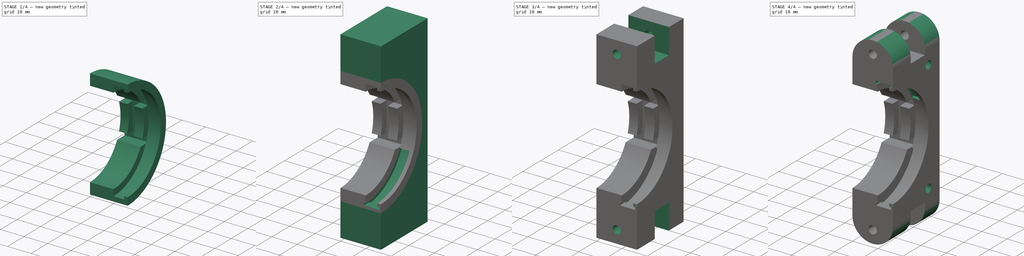
[diagram: build sequence overview — one tinted view per stage of 4, left to right]
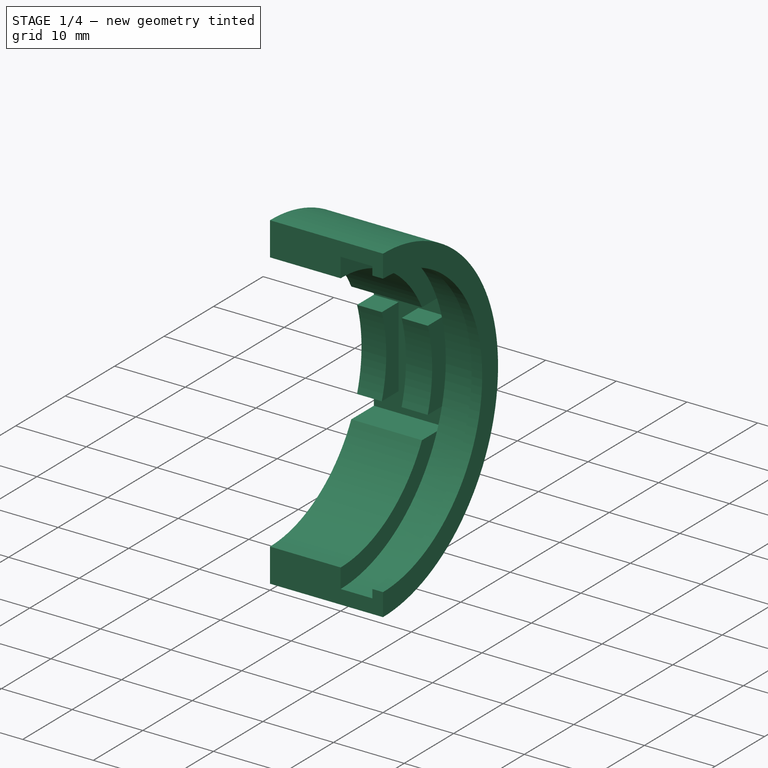
[diagram: stage 1 of 4 — iso view after this stage's code; geometry added in this stage tinted green]
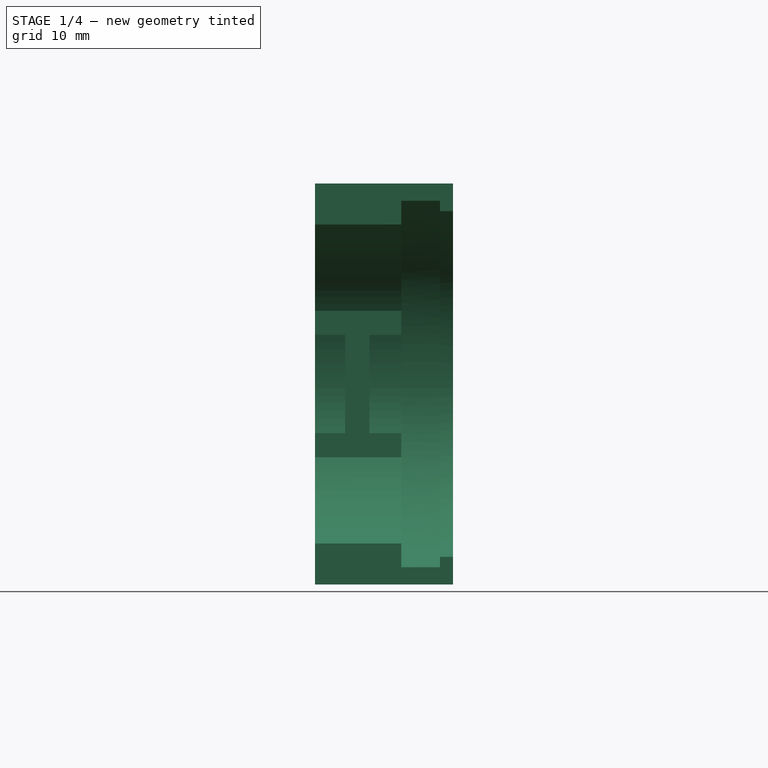
[diagram: stage 1 of 4 — front view after this stage's code; geometry added in this stage tinted green]
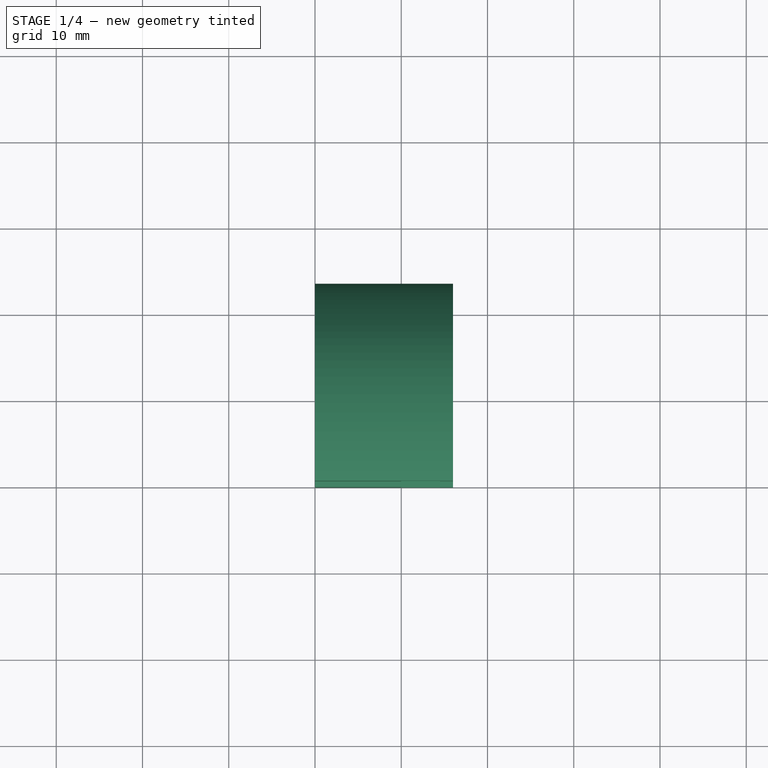
[diagram: stage 1 of 4 — top view after this stage's code; geometry added in this stage tinted green]
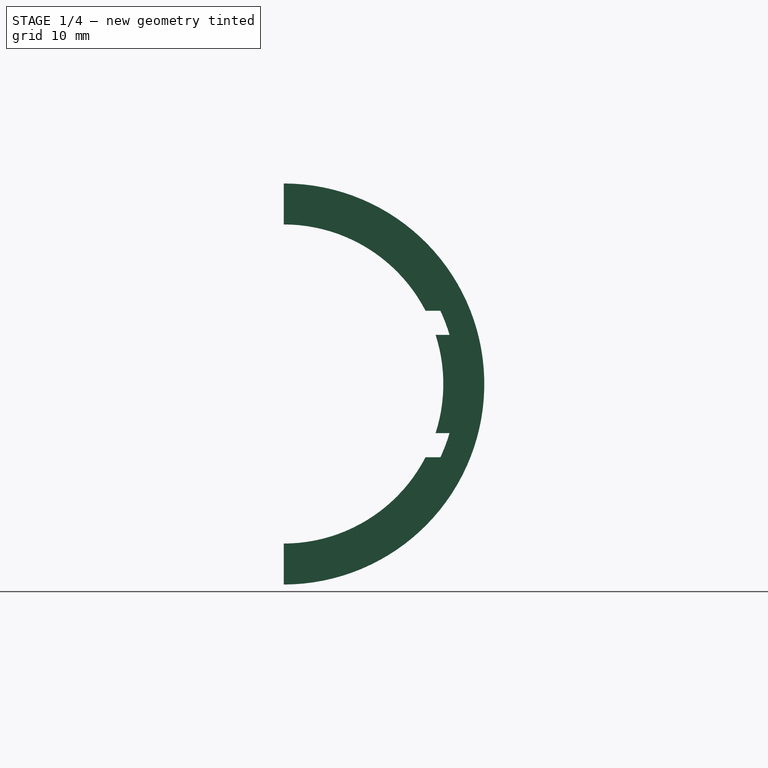
[diagram: stage 1 of 4 — right view after this stage's code; geometry added in this stage tinted green]
FCSTD DOCUMENT  (FreeCAD 0.21R33771 (Git))
Label: fixador-amortecedor-encoder-catraca
License: All rights reserved
LicenseURL: https://en.wikipedia.org/wiki/All_rights_reserved
objects: Sketcher::SketchObject×10, PartDesign::Pocket×6, PartDesign::Groove×2, PartDesign::Revolution×1, PartDesign::Pad×1, PartDesign::Mirrored×1, PartDesign::Fillet×1, PartDesign::Body×1
note: 34 computed .brp shape members not serialized (recipe doc carries the construction recipe); baked Part::Feature solids carry a one-line shape summary decoded from their .brp

FEATURE [Sketcher::SketchObject] Sketch
  FullyConstrained = true
  MapMode = 5
  Support = -> [XY_Plane]
  sketch-geometry (14):
    g0: LineSegment StartX=0 StartY=-18.5 StartZ=0 EndX=10 EndY=-18.5 EndZ=0
    g1: LineSegment StartX=10 StartY=-18.5 StartZ=0 EndX=10 EndY=-23.25 EndZ=0
    g2: LineSegment StartX=10 StartY=-23.25 StartZ=0 EndX=0 EndY=-23.25 EndZ=0
    g3: LineSegment StartX=0 StartY=-23.25 StartZ=0 EndX=0 EndY=-18.5 EndZ=0
    g4: LineSegment StartX=10 StartY=-21.25 StartZ=0 EndX=14.5 EndY=-21.25 EndZ=0
    g5: LineSegment StartX=14.5 StartY=-21.25 StartZ=0 EndX=14.5 EndY=-23.25 EndZ=0
    g6: LineSegment StartX=14.5 StartY=-23.25 StartZ=0 EndX=10 EndY=-23.25 EndZ=0
    g7: LineSegment StartX=10 StartY=-23.25 StartZ=0 EndX=10 EndY=-21.25 EndZ=0
    g8: LineSegment StartX=10 StartY=-18.5 StartZ=0 EndX=10 EndY=-21.25 EndZ=0
    g9: LineSegment StartX=14.5 StartY=-23.25 StartZ=0 EndX=16 EndY=-23.25 EndZ=0
    g10: LineSegment StartX=16 StartY=-23.25 StartZ=0 EndX=16 EndY=-20.05 EndZ=0
    g11: LineSegment StartX=16 StartY=-20.05 StartZ=0 EndX=14.5 EndY=-20.05 EndZ=0
    g12: LineSegment StartX=14.5 StartY=-20.05 StartZ=0 EndX=14.5 EndY=-23.25 EndZ=0
    g13: LineSegment StartX=14.5 StartY=-20.05 StartZ=0 EndX=14.5 EndY=-21.25 EndZ=0
  constraints (38):
    c: Coincident(g0,g1)
    c: Coincident(g1,g2)
    c: Coincident(g2,g3)
    c: Coincident(g3,g0)
    c: Horizontal(g0)
    c: Horizontal(g2)
    c: Vertical(g1)
    c: Vertical(g3)
    c: DistanceY(g0,g-1) = 18.5
    c: DistanceX(g0,g0) = 10
    c: PointOnObject(g0,g-2)
    c: Coincident(g4,g5)
    c: Coincident(g5,g6)
    c: Coincident(g6,g7)
    c: Coincident(g7,g4)
    c: Horizontal(g4)
    c: Horizontal(g6)
    c: Vertical(g5)
    c: Vertical(g7)
    c: DistanceY(g4,g-1) = 21.25
    c: Coincident(g6,g2)
    c: Coincident(g8,g0)
    c: Coincident(g8,g4)
    c: Coincident(g9,g10)
    c: Coincident(g10,g11)
    c: Coincident(g11,g12)
    c: Coincident(g12,g9)
    c: Horizontal(g9)
    c: Horizontal(g11)
    c: Vertical(g10)
    c: Vertical(g12)
    c: Coincident(g9,g6)
    c: DistanceY(g11,g-1) = 20.05
    c: Coincident(g13,g11)
    c: Coincident(g13,g4)
    c: DistanceY(g9,g4) = 2
    c: DistanceX(g11,g11) = 1.5
    c: DistanceX(g2,g9) = 16
FEATURE [PartDesign::Revolution] Revolution
  Angle = 360
  Axis = (1,0,0)
  Base = (0,0,0)
  Profile = -> Sketch
  ReferenceAxis = -> X_Axis
  Reversed = true
FEATURE [Sketcher::SketchObject] Sketch001
  ExternalGeometry = -> [Revolution]
  FullyConstrained = true
  MapMode = 5
  Placement = pos=(16,0,0) rot=(0.57735,0.57735,0.57735;2.0944rad)
  Support = -> [Revolution]
  sketch-geometry (4):
    g0: LineSegment StartX=-23.25 StartY=23.25 StartZ=0 EndX=0 EndY=23.25 EndZ=0
    g1: LineSegment StartX=0 StartY=23.25 StartZ=0 EndX=0 EndY=-23.25 EndZ=0
    g2: LineSegment StartX=0 StartY=-23.25 StartZ=0 EndX=-23.25 EndY=-23.25 EndZ=0
    g3: LineSegment StartX=-23.25 StartY=-23.25 StartZ=0 EndX=-23.25 EndY=23.25 EndZ=0
  constraints (12):
    c: Coincident(g0,g1)
    c: Coincident(g1,g2)
    c: Coincident(g2,g3)
    c: Coincident(g3,g0)
    c: Horizontal(g0)
    c: Horizontal(g2)
    c: Vertical(g1)
    c: Vertical(g3)
    c: PointOnObject(g1,g-2)
    c: PointOnObject(g1,g-3)
    c: PointOnObject(g0,g-3)
    c: Tangent(g3,g-3)
FEATURE [PartDesign::Pocket] Pocket
  BaseFeature = -> Revolution
  Direction = (-1,0,0)
  Length = 5
  Length2 = 5
  Profile = -> Sketch001
  ReferenceAxis = -> Sketch001 [N_Axis]
  Type = 1
FEATURE [Sketcher::SketchObject] Sketch002
  ExternalGeometry = -> [Pocket]
  FullyConstrained = false
  MapMode = 5
  Placement = pos=(0,0,0) rot=(1,0,0;1.5708rad)
  Support = -> [Pocket]
  sketch-geometry (20):
    g0: LineSegment StartX=1.46192 StartY=8.5 StartZ=0 EndX=10 EndY=8.5 EndZ=0
    g1: LineSegment StartX=10 StartY=8.5 StartZ=0 EndX=10 EndY=-8.5 EndZ=0
    g2: LineSegment StartX=10 StartY=-8.5 StartZ=0 EndX=1.46192 EndY=-8.5 EndZ=0
    g3: LineSegment StartX=1.46192 StartY=-8.5 StartZ=0 EndX=1.46192 EndY=8.5 EndZ=0
    g4: LineSegment StartX=0 StartY=8.5 StartZ=0 EndX=10 EndY=8.5 EndZ=0
    g5: LineSegment StartX=10 StartY=8.5 StartZ=0 EndX=10 EndY=5.7 EndZ=0
    g6: LineSegment StartX=10 StartY=5.7 StartZ=0 EndX=0 EndY=5.7 EndZ=0
    g7: LineSegment StartX=0 StartY=5.7 StartZ=0 EndX=0 EndY=8.5 EndZ=0
    g8: LineSegment StartX=10 StartY=-5.7 StartZ=0 EndX=0 EndY=-5.7 EndZ=0
    g9: LineSegment StartX=0 StartY=-5.7 StartZ=0 EndX=0 EndY=-8.5 EndZ=0
    g10: LineSegment StartX=0 StartY=-8.5 StartZ=0 EndX=10 EndY=-8.5 EndZ=0
    g11: LineSegment StartX=10 StartY=-8.5 StartZ=0 EndX=10 EndY=-5.7 EndZ=0
    g12: LineSegment StartX=3.5 StartY=5.7 StartZ=0 EndX=6.3 EndY=5.7 EndZ=0
    g13: LineSegment StartX=6.3 StartY=5.7 StartZ=0 EndX=6.3 EndY=-5.7 EndZ=0
    g14: LineSegment StartX=6.3 StartY=-5.7 StartZ=0 EndX=3.5 EndY=-5.7 EndZ=0
    g15: LineSegment StartX=3.5 StartY=-5.7 StartZ=0 EndX=3.5 EndY=5.7 EndZ=0
    g16: LineSegment StartX=3.5 StartY=5.7 StartZ=0 EndX=0 EndY=5.7 EndZ=0
    g17: LineSegment StartX=6.3 StartY=5.7 StartZ=0 EndX=10 EndY=5.7 EndZ=0
    g18: LineSegment StartX=3.5 StartY=-5.7 StartZ=0 EndX=0 EndY=-5.7 EndZ=0
    g19: LineSegment StartX=6.3 StartY=-5.7 StartZ=0 EndX=10 EndY=-5.7 EndZ=0
  constraints (54):
    c: Coincident(g0,g1)
    c: Coincident(g1,g2)
    c: Coincident(g2,g3)
    c: Coincident(g3,g0)
    c: Horizontal(g0)
    c: Horizontal(g2)
    c: Vertical(g1)
    c: Symmetric(g2,g0,g-1)
    c: Coincident(g4,g5)
    c: Coincident(g5,g6)
    c: Coincident(g6,g7)
    c: Coincident(g7,g4)
    c: Horizontal(g4)
    c: Horizontal(g6)
    c: Vertical(g5)
    c: Vertical(g7)
    c: PointOnObject(g5,g1)
    c: Coincident(g8,g9)
    c: Coincident(g9,g10)
    c: Coincident(g10,g11)
    c: Coincident(g11,g8)
    c: Horizontal(g8)
    c: Horizontal(g10)
    c: Vertical(g9)
    c: Vertical(g11)
    c: PointOnObject(g8,g1)
    c: PointOnObject(g2,g10)
    c: PointOnObject(g9,g-2)
    c: Symmetric(g6,g8,g-1)
    c: PointOnObject(g0,g4)
    c: Coincident(g12,g13)
    c: Coincident(g13,g14)
    c: Coincident(g14,g15)
    c: Coincident(g15,g12)
    c: Horizontal(g12)
    c: Horizontal(g14)
    c: Vertical(g13)
    c: Vertical(g15)
    c: PointOnObject(g12,g6)
    c: PointOnObject(g13,g8)
    c: Coincident(g16,g7)
    c: Coincident(g16,g15)
    c: Coincident(g17,g13)
    c: Coincident(g17,g5)
    c: Coincident(g18,g9)
    c: Coincident(g18,g15)
    c: Coincident(g19,g13)
    c: Coincident(g19,g11)
    c: DistanceY(g7,g7) = 2.8
    c: DistanceX(g15,g13) = 2.8
    c: DistanceY(g9,g4) = 17
    c: DistanceX(g18,g18) = 3.5
    c: PointOnObject(g5,g-3)
    c: DistanceX(g-3,g-4) = 4.5
FEATURE [PartDesign::Pocket] Pocket001
  BaseFeature = -> Pocket
  Direction = (0,1,-2e-16)
  Length = 21
  Length2 = 5
  Profile = -> Sketch002
  ReferenceAxis = -> Sketch002 [N_Axis]
  Type = 0
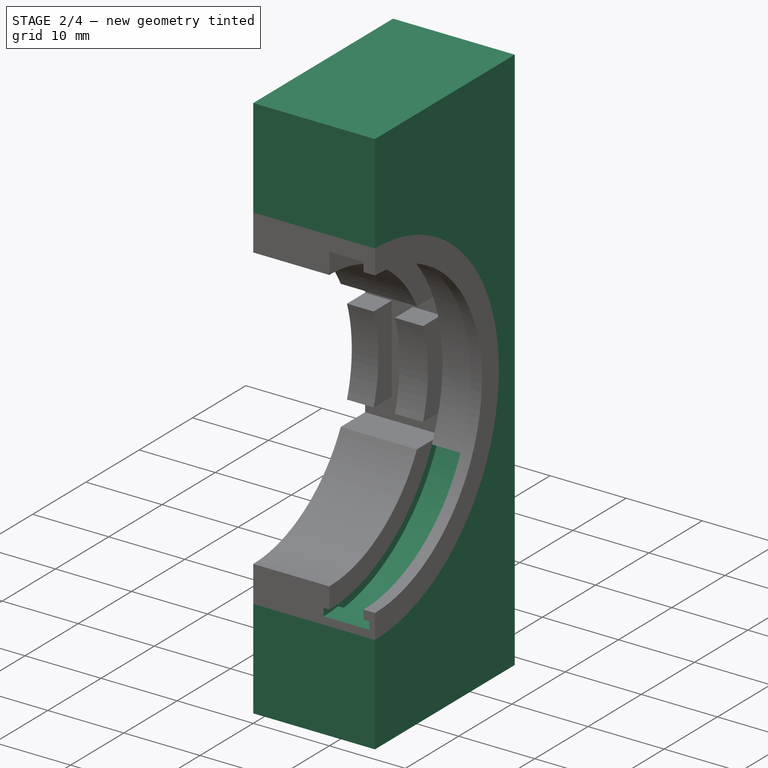
[diagram: stage 2 of 4 — iso view after this stage's code; geometry added in this stage tinted green]
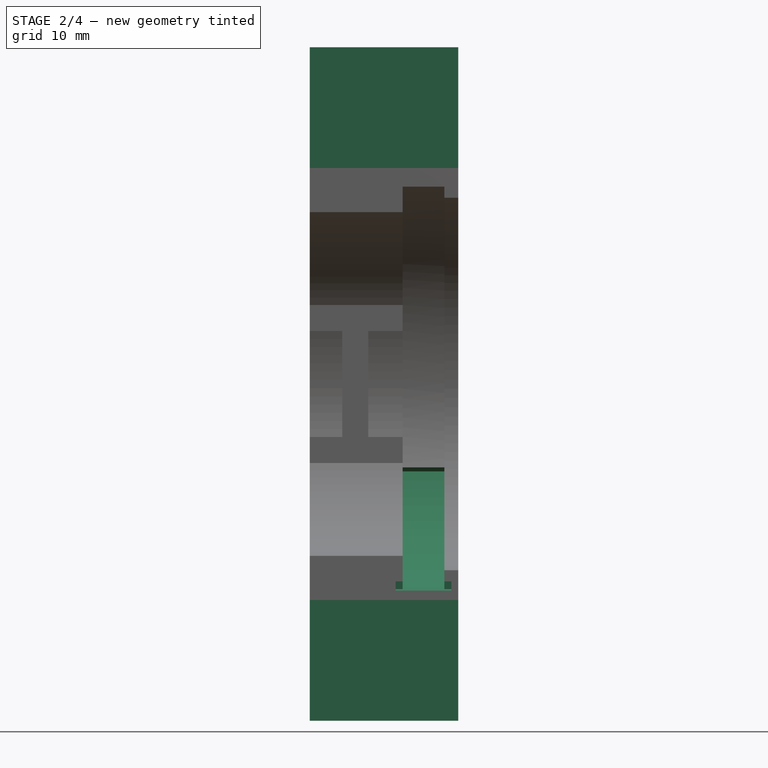
[diagram: stage 2 of 4 — front view after this stage's code; geometry added in this stage tinted green]
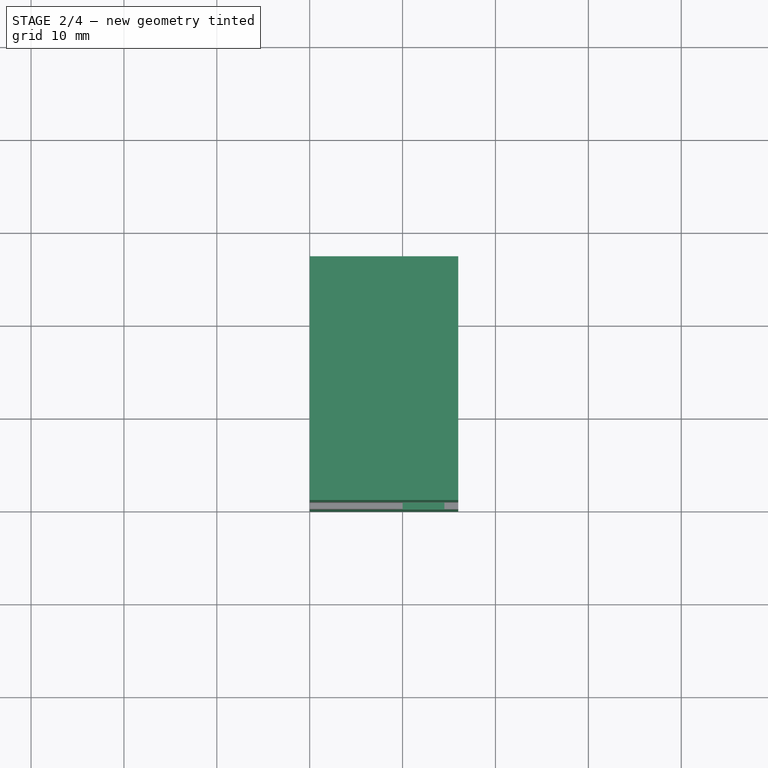
[diagram: stage 2 of 4 — top view after this stage's code; geometry added in this stage tinted green]
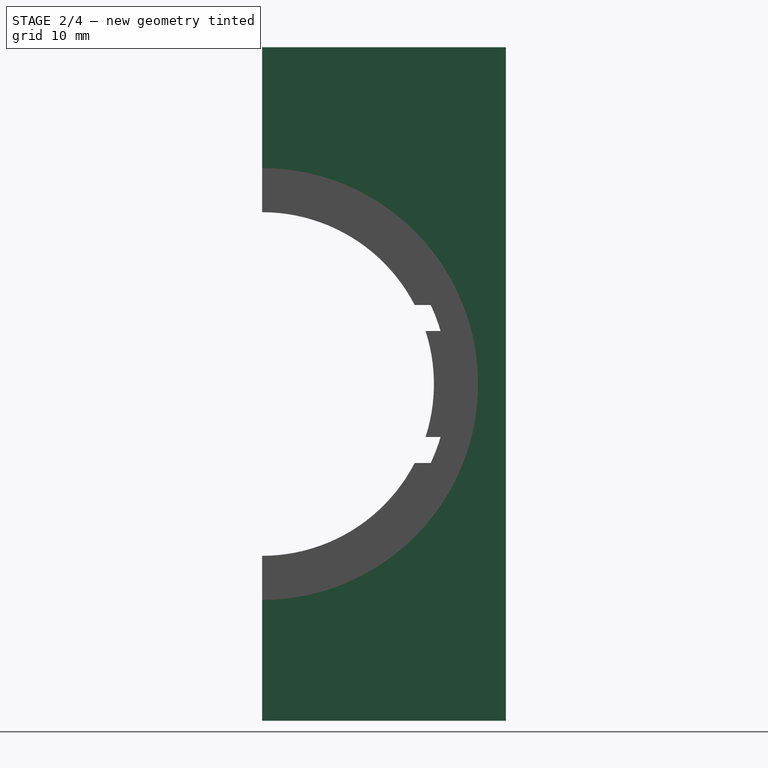
[diagram: stage 2 of 4 — right view after this stage's code; geometry added in this stage tinted green]
FEATURE [Sketcher::SketchObject] Sketch003
  ExternalGeometry = -> [Pocket001]
  FullyConstrained = true
  MapMode = 5
  Placement = pos=(0,0,0) rot=(1,0,0;1.5708rad)
  Support = -> [Pocket001]
  sketch-geometry (4):
    g0: LineSegment StartX=10 StartY=-21.25 StartZ=0 EndX=14.5 EndY=-21.25 EndZ=0
    g1: LineSegment StartX=14.5 StartY=-21.25 StartZ=0 EndX=14.5 EndY=-22.25 EndZ=0
    g2: LineSegment StartX=14.5 StartY=-22.25 StartZ=0 EndX=10 EndY=-22.25 EndZ=0
    g3: LineSegment StartX=10 StartY=-22.25 StartZ=0 EndX=10 EndY=-21.25 EndZ=0
  constraints (10):
    c: Coincident(g0,g1)
    c: Coincident(g1,g2)
    c: Coincident(g2,g3)
    c: Coincident(g3,g0)
    c: Horizontal(g2)
    c: Vertical(g1)
    c: Vertical(g3)
    c: Coincident(g0,g-3)
    c: Coincident(g0,g-3)
    c: DistanceY(g3,g3) = 1
FEATURE [PartDesign::Groove] Groove
  Angle = 65
  Axis = (1,0,0)
  Base = (0,0,0)
  BaseFeature = -> Pocket001
  Profile = -> Sketch003
  ReferenceAxis = -> X_Axis
FEATURE [Sketcher::SketchObject] Sketch004
  ExternalGeometry = -> [Groove]
  FullyConstrained = true
  MapMode = 5
  Placement = pos=(0,0,0) rot=(1,0,0;1.5708rad)
  Support = -> [Groove]
  sketch-geometry (5):
    g0: LineSegment StartX=15.25 StartY=-22.25 StartZ=0 EndX=9.25 EndY=-22.25 EndZ=0
    g1: LineSegment StartX=9.25 StartY=-22.25 StartZ=0 EndX=9.25 EndY=-21.25 EndZ=0
    g2: LineSegment StartX=9.25 StartY=-21.25 StartZ=0 EndX=15.25 EndY=-21.25 EndZ=0
    g3: LineSegment StartX=15.25 StartY=-21.25 StartZ=0 EndX=15.25 EndY=-22.25 EndZ=0
    g4: LineSegment StartX=12.25 StartY=-21.25 StartZ=0 EndX=12.25 EndY=-22.25 EndZ=0
  constraints (14):
    c: Coincident(g0,g1)
    c: Coincident(g1,g2)
    c: Coincident(g2,g3)
    c: Coincident(g3,g0)
    c: Horizontal(g0)
    c: Vertical(g1)
    c: Vertical(g3)
    c: PointOnObject(g-3,g0)
    c: Symmetric(g2,g1,g4)
    c: Symmetric(g-3,g-3,g4)
    c: PointOnObject(g-4,g2)
    c: DistanceX(g2,g2) = 6
    c: PointOnObject(g4,g0)
    c: PointOnObject(g4,g2)
FEATURE [PartDesign::Groove] Groove001
  Angle = 7
  Axis = (1,0,0)
  Base = (0,0,0)
  BaseFeature = -> Groove
  Profile = -> Sketch004
  ReferenceAxis = -> X_Axis
FEATURE [Sketcher::SketchObject] Sketch005
  ExternalGeometry = -> [Groove001]
  FullyConstrained = true
  MapMode = 5
  Placement = pos=(0,0,0) rot=(0.57735,-0.57735,-0.57735;2.0944rad)
  Support = -> [Groove001]
  sketch-geometry (7):
    g0: ArcOfCircle CenterX=0 CenterY=-1.3e-15 CenterZ=0 NormalX=0 NormalY=0 NormalZ=1 AngleXU=0 Radius=23.25 StartAngle=1.5708 EndAngle=4.71239
    g1: LineSegment StartX=-26.25 StartY=36.25 StartZ=0 EndX=0 EndY=36.25 EndZ=0
    g2: LineSegment StartX=0 StartY=36.25 StartZ=0 EndX=0 EndY=23.25 EndZ=0
    g3: LineSegment StartX=-26.25 StartY=-36.25 StartZ=0 EndX=-26.25 EndY=36.25 EndZ=0
    g4: LineSegment StartX=-23.25 StartY=36.25 StartZ=0 EndX=-23.25 EndY=-36.25 EndZ=0
    g5: LineSegment StartX=-26.25 StartY=-36.25 StartZ=0 EndX=-2.522e-13 EndY=-36.25 EndZ=0
    g6: LineSegment StartX=-2.521e-13 StartY=-36.25 StartZ=0 EndX=-2.521e-13 EndY=-23.25 EndZ=0
  constraints (21):
    c: PointOnObject(g0,g-2)
    c: Coincident(g0,g-3)
    c: Coincident(g0,g-3)
    c: Coincident(g1,g2)
    c: Coincident(g3,g1)
    c: Horizontal(g1)
    c: Vertical(g2)
    c: PointOnObject(g1,g-2)
    c: PointOnObject(g2,g0)
    c: Symmetric(g1,g3,g-1)
    c: PointOnObject(g4,g1)
    c: Vertical(g4)
    c: Tangent(g4,g0)
    c: DistanceY(g2,g2) = 13
    c: DistanceX(g1,g4) = 3
    c: Coincident(g5,g3)
    c: Horizontal(g5)
    c: Coincident(g6,g5)
    c: Vertical(g6)
    c: Coincident(g6,g0)
    c: PointOnObject(g4,g5)
FEATURE [PartDesign::Pad] Pad
  BaseFeature = -> Groove001
  Direction = (-1,0,0)
  Length = 10
  Length2 = 10
  Profile = -> Sketch005
  ReferenceAxis = -> Sketch005 [N_Axis]
  Type = 3
  UpToFace = -> Groove001 [Face6]
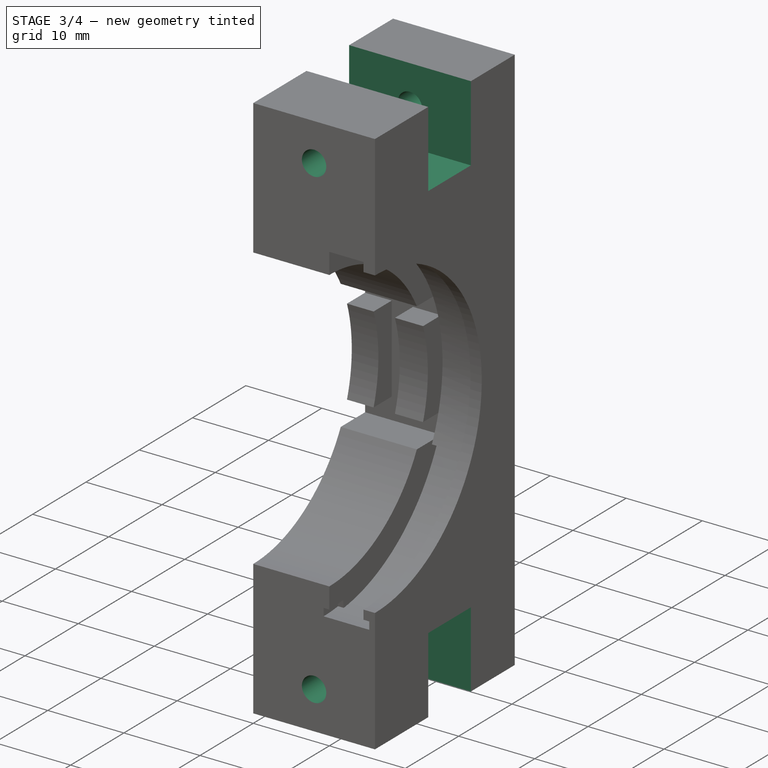
[diagram: stage 3 of 4 — iso view after this stage's code; geometry added in this stage tinted green]
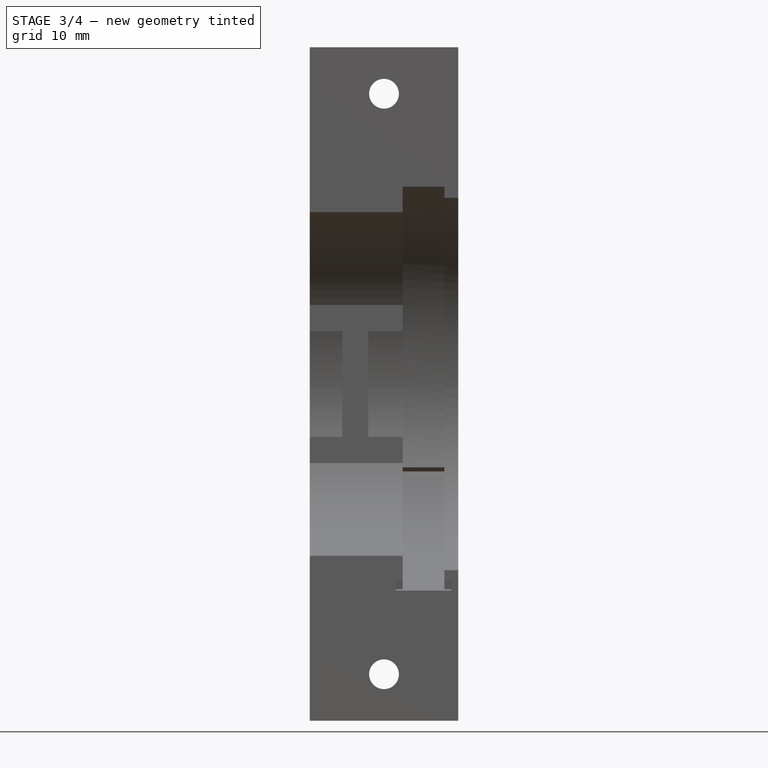
[diagram: stage 3 of 4 — front view after this stage's code; geometry added in this stage tinted green]
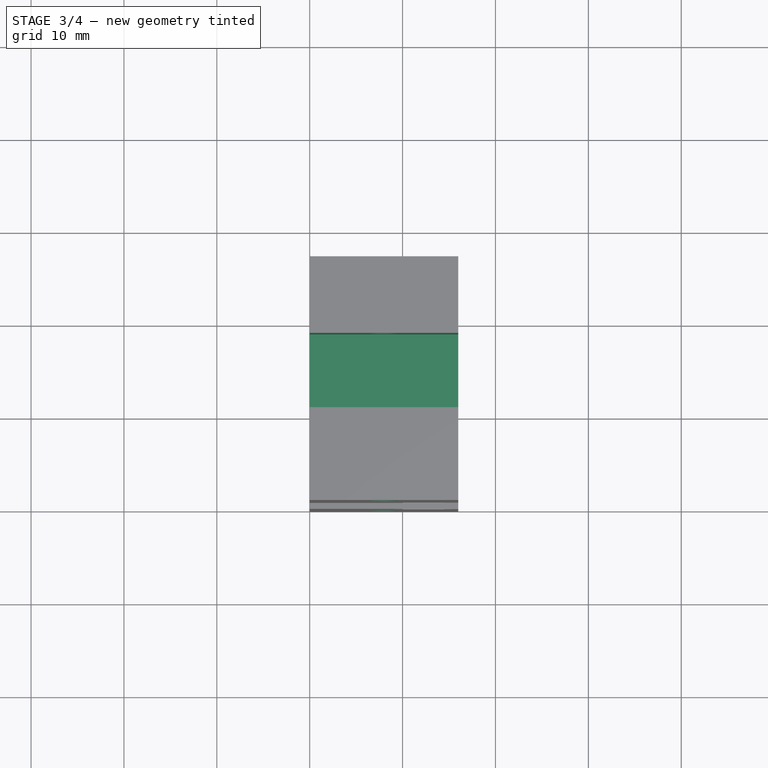
[diagram: stage 3 of 4 — top view after this stage's code; geometry added in this stage tinted green]
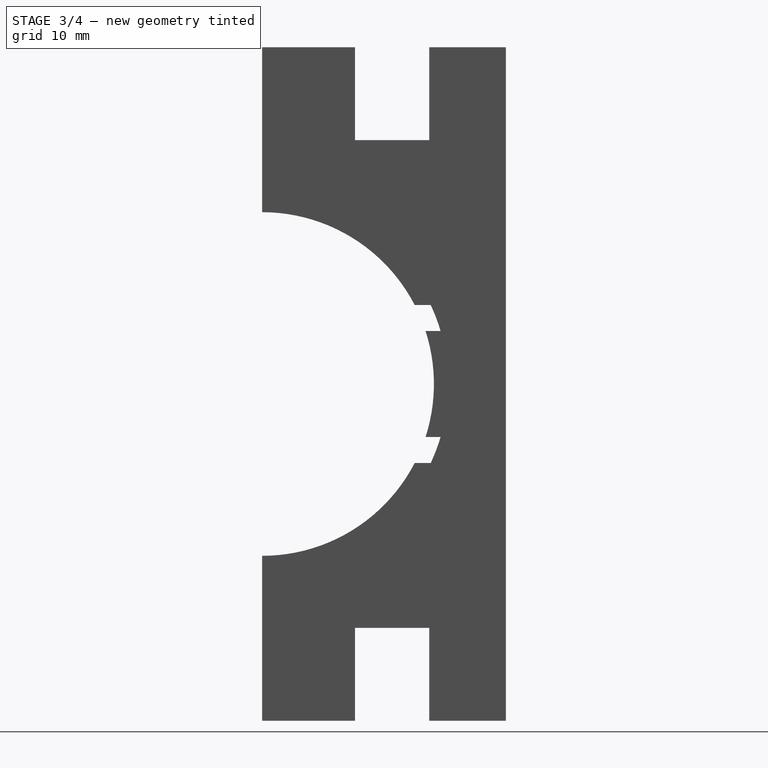
[diagram: stage 3 of 4 — right view after this stage's code; geometry added in this stage tinted green]
FEATURE [Sketcher::SketchObject] Sketch006
  ExternalGeometry = -> [Pad]
  FullyConstrained = true
  MapMode = 5
  Placement = pos=(16,0,0) rot=(0.57735,0.57735,0.57735;2.0944rad)
  Support = -> [Pad]
  sketch-geometry (16):
    g0: LineSegment StartX=-10 StartY=36.25 StartZ=0 EndX=10 EndY=36.25 EndZ=0
    g1: LineSegment StartX=10 StartY=36.25 StartZ=0 EndX=10 EndY=26.25 EndZ=0
    g2: LineSegment StartX=10 StartY=26.25 StartZ=0 EndX=-10 EndY=26.25 EndZ=0
    g3: LineSegment StartX=-10 StartY=26.25 StartZ=0 EndX=-10 EndY=36.25 EndZ=0
    g4: LineSegment StartX=-10 StartY=36.25 StartZ=0 EndX=-18 EndY=36.25 EndZ=0
    g5: LineSegment StartX=-18 StartY=36.25 StartZ=0 EndX=-18 EndY=26.25 EndZ=0
    g6: LineSegment StartX=-18 StartY=26.25 StartZ=0 EndX=-10 EndY=26.25 EndZ=0
    g7: LineSegment StartX=-10 StartY=26.25 StartZ=0 EndX=-10 EndY=36.25 EndZ=0
    g8: LineSegment StartX=10 StartY=36.25 StartZ=0 EndX=18 EndY=36.25 EndZ=0
    g9: LineSegment StartX=18 StartY=36.25 StartZ=0 EndX=18 EndY=26.25 EndZ=0
    g10: LineSegment StartX=18 StartY=26.25 StartZ=0 EndX=10 EndY=26.25 EndZ=0
    g11: LineSegment StartX=10 StartY=26.25 StartZ=0 EndX=10 EndY=36.25 EndZ=0
    g12: LineSegment StartX=10 StartY=-36.25 StartZ=0 EndX=18 EndY=-36.25 EndZ=0
    g13: LineSegment StartX=18 StartY=-36.25 StartZ=0 EndX=18 EndY=-26.25 EndZ=0
    g14: LineSegment StartX=18 StartY=-26.25 StartZ=0 EndX=10 EndY=-26.25 EndZ=0
    g15: LineSegment StartX=10 StartY=-26.25 StartZ=0 EndX=10 EndY=-36.25 EndZ=0
  constraints (44):
    c: Coincident(g0,g1)
    c: Coincident(g1,g2)
    c: Coincident(g2,g3)
    c: Coincident(g3,g0)
    c: Horizontal(g2)
    c: Vertical(g1)
    c: Vertical(g3)
    c: Coincident(g4,g5)
    c: Coincident(g5,g6)
    c: Coincident(g6,g7)
    c: Coincident(g7,g4)
    c: Horizontal(g4)
    c: Horizontal(g6)
    c: Vertical(g5)
    c: Vertical(g7)
    c: Coincident(g4,g0)
    c: Coincident(g8,g9)
    c: Coincident(g9,g10)
    c: Coincident(g10,g11)
    c: Coincident(g11,g8)
    c: Horizontal(g10)
    c: Vertical(g9)
    c: Vertical(g11)
    c: Coincident(g8,g0)
    c: PointOnObject(g10,g2)
    c: PointOnObject(g6,g2)
    c: Symmetric(g4,g8,g-2)
    c: Symmetric(g4,g8,g-2)
    c: PointOnObject(g8,g-3)
    c: DistanceX(g4,g4) = 8
    c: DistanceX(g0,g0) = 20
    c: DistanceY(g5,g5) = 10
    c: Coincident(g12,g13)
    c: Coincident(g13,g14)
    c: Coincident(g14,g15)
    c: Coincident(g15,g12)
    c: Horizontal(g12)
    c: Horizontal(g14)
    c: Vertical(g13)
    c: Vertical(g15)
    c: PointOnObject(g12,g-4)
    c: Vertical(g14,g10)
    c: Vertical(g9,g13)
    c: Equal(g15,g11)
FEATURE [PartDesign::Pocket] Pocket002
  BaseFeature = -> Pad
  Direction = (-1,0,0)
  Length = 5
  Length2 = 5
  Profile = -> Sketch006
  ReferenceAxis = -> Sketch006 [N_Axis]
  Type = 1
FEATURE [Sketcher::SketchObject] Sketch007
  ExternalGeometry = -> [Pocket002]
  FullyConstrained = true
  MapMode = 5
  Placement = pos=(0,26.25,0) rot=(0,0.707107,0.707107;3.14159rad)
  Support = -> [Pocket002]
  sketch-geometry (4):
    g0: LineSegment StartX=-8 StartY=36.25 StartZ=0 EndX=-8 EndY=26.25 EndZ=0
    g1: LineSegment StartX=0 StartY=31.25 StartZ=0 EndX=-16 EndY=31.25 EndZ=0
    g2: Circle CenterX=-8 CenterY=31.25 CenterZ=0 NormalX=0 NormalY=0 NormalZ=1 AngleXU=0 Radius=1.6
    g3: Circle CenterX=-8 CenterY=-31.25 CenterZ=0 NormalX=0 NormalY=0 NormalZ=1 AngleXU=0 Radius=1.6
  constraints (11):
    c: Symmetric(g-5,g-6,g1)
    c: Symmetric(g-5,g-5,g0)
    c: PointOnObject(g0,g-5)
    c: PointOnObject(g1,g-3)
    c: PointOnObject(g1,g-4)
    c: PointOnObject(g0,g-6)
    c: PointOnObject(g2,g0)
    c: PointOnObject(g2,g1)
    c: Equal(g2,g3)
    c: Symmetric(g3,g2,g-1)
    c: Diameter(g3) = 3.2
FEATURE [PartDesign::Pocket] Pocket003
  BaseFeature = -> Pocket002
  Direction = (0,-1,2e-16)
  Length = 5
  Length2 = 5
  Profile = -> Sketch007
  ReferenceAxis = -> Sketch007 [N_Axis]
  Type = 1
FEATURE [Sketcher::SketchObject] Sketch008
  ExternalGeometry = -> [Pocket003]
  FullyConstrained = true
  MapMode = 5
  Placement = pos=(0,26.25,0) rot=(0,0.707107,0.707107;3.14159rad)
  Support = -> [Pocket003]
  sketch-geometry (14):
    g0: LineSegment StartX=-9.81865 StartY=34.4 StartZ=0 EndX=-11.6373 EndY=31.25 EndZ=0
    g1: LineSegment StartX=-11.6373 StartY=31.25 StartZ=0 EndX=-9.81865 EndY=28.1 EndZ=0
    g2: LineSegment StartX=-9.81865 StartY=28.1 StartZ=0 EndX=-6.18135 EndY=28.1 EndZ=0
    g3: LineSegment StartX=-6.18135 StartY=28.1 StartZ=0 EndX=-4.36269 EndY=31.25 EndZ=0
    g4: LineSegment StartX=-4.36269 StartY=31.25 StartZ=0 EndX=-6.18135 EndY=34.4 EndZ=0
    g5: LineSegment StartX=-6.18135 StartY=34.4 StartZ=0 EndX=-9.81865 EndY=34.4 EndZ=0
    g6: Circle CenterX=-8 CenterY=31.25 CenterZ=0 NormalX=0 NormalY=0 NormalZ=1 AngleXU=0 Radius=3.63731
    g7: LineSegment StartX=-9.81865 StartY=-28.1 StartZ=0 EndX=-11.6373 EndY=-31.25 EndZ=0
    g8: LineSegment StartX=-11.6373 StartY=-31.25 StartZ=0 EndX=-9.81865 EndY=-34.4 EndZ=0
    g9: LineSegment StartX=-9.81865 StartY=-34.4 StartZ=0 EndX=-6.18135 EndY=-34.4 EndZ=0
    g10: LineSegment StartX=-6.18135 StartY=-34.4 StartZ=0 EndX=-4.36269 EndY=-31.25 EndZ=0
    g11: LineSegment StartX=-4.36269 StartY=-31.25 StartZ=0 EndX=-6.18135 EndY=-28.1 EndZ=0
    g12: LineSegment StartX=-6.18135 StartY=-28.1 StartZ=0 EndX=-9.81865 EndY=-28.1 EndZ=0
    g13: Circle CenterX=-8 CenterY=-31.25 CenterZ=0 NormalX=0 NormalY=0 NormalZ=1 AngleXU=0 Radius=3.63731
  constraints (32):
    c: Coincident(g0,g1)
    c: Coincident(g1,g2)
    c: Coincident(g2,g3)
    c: Coincident(g3,g4)
    c: Coincident(g4,g5)
    c: Coincident(g5,g0)
    c: Equal(g0, g1-g5) x5
    c: PointOnObject(g0,g6)
    c: PointOnObject(g1,g6)
    c: PointOnObject(g2,g6)
    c: PointOnObject(g3,g6)
    c: PointOnObject(g4,g6)
    c: PointOnObject(g5,g6)
    c: Coincident(g6,g-3)
    c: DistanceY(g1,g0) = 6.3
    c: Horizontal(g2)
    c: Coincident(g7,g8)
    c: Coincident(g8,g9)
    c: Coincident(g9,g10)
    c: Coincident(g10,g11)
    c: Coincident(g11,g12)
    c: Coincident(g12,g7)
    c: Equal(g7, g8-g12) x5
    c: PointOnObject(g7,g13)
    c: PointOnObject(g8,g13)
    c: PointOnObject(g9,g13)
    c: PointOnObject(g10,g13)
    c: PointOnObject(g11,g13)
    c: PointOnObject(g12,g13)
    c: Coincident(g13,g-4)
    c: Horizontal(g9)
    c: Equal(g13,g6)
FEATURE [PartDesign::Pocket] Pocket004
  BaseFeature = -> Pocket003
  Direction = (0,-1,2e-16)
  Length = 2.7
  Length2 = 5
  Profile = -> Sketch008
  ReferenceAxis = -> Sketch008 [N_Axis]
  Type = 0
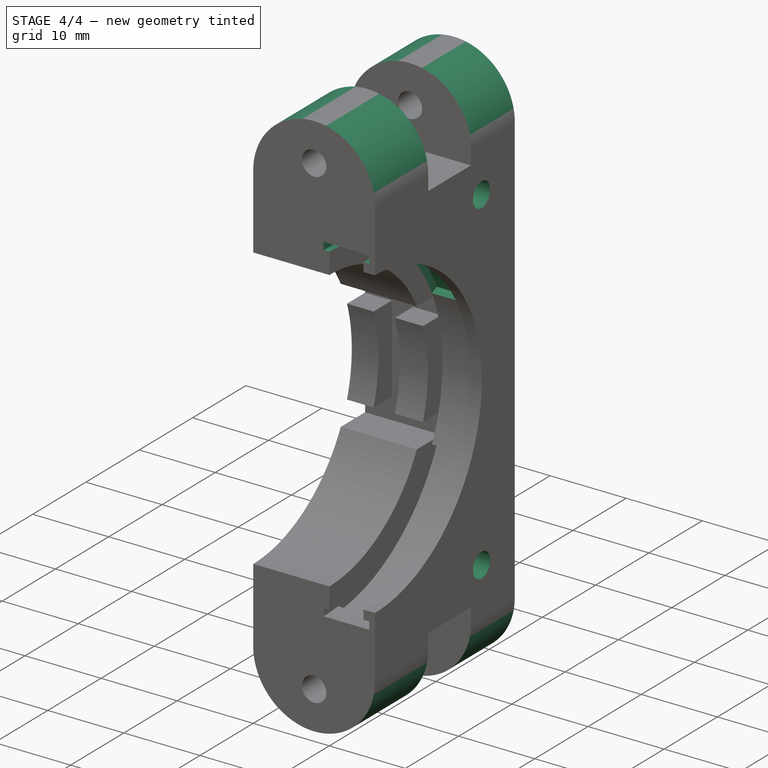
[diagram: stage 4 of 4 — iso view after this stage's code; geometry added in this stage tinted green]
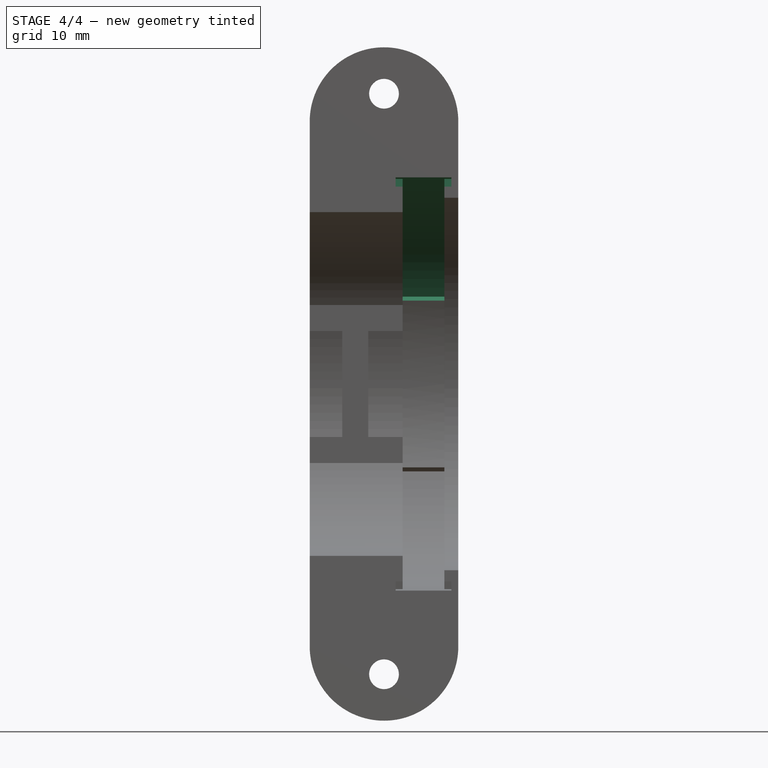
[diagram: stage 4 of 4 — front view after this stage's code; geometry added in this stage tinted green]
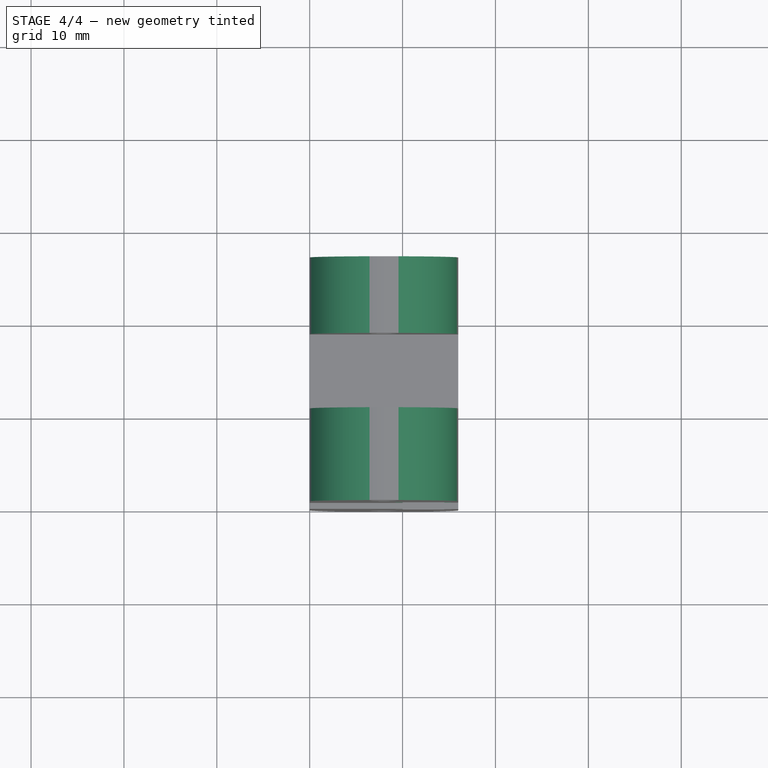
[diagram: stage 4 of 4 — top view after this stage's code; geometry added in this stage tinted green]
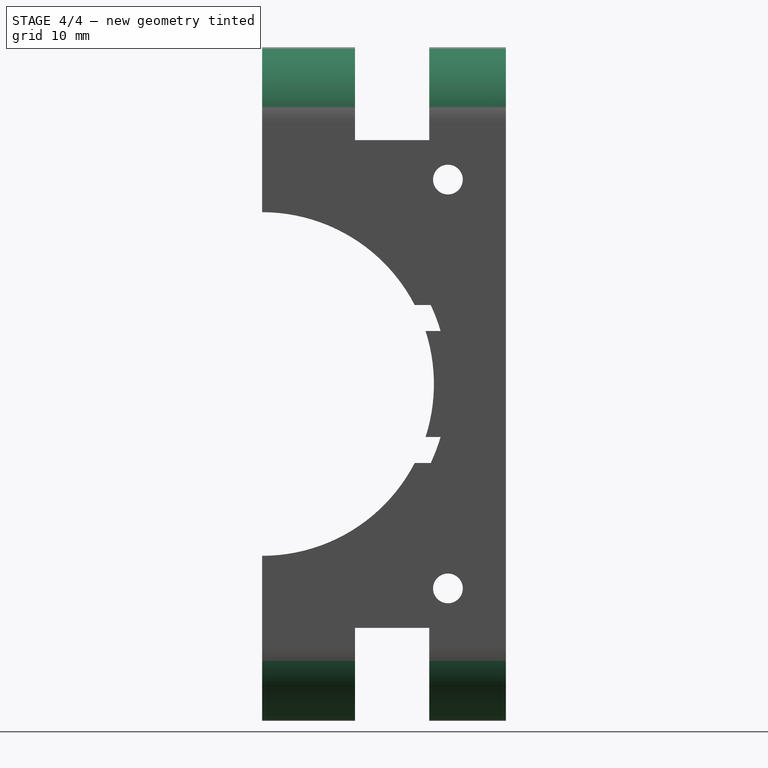
[diagram: stage 4 of 4 — right view after this stage's code; geometry added in this stage tinted green]
FEATURE [PartDesign::Mirrored] Mirrored
  BaseFeature = -> Pocket004
  MirrorPlane = -> XY_Plane
  Originals = -> [Groove001,Groove]
FEATURE [PartDesign::Fillet] Fillet
  Base = -> Mirrored [Edge134,Edge130,Edge85,Edge81,Edge124,Edge128,Edge79,Edge75]
  BaseFeature = -> Mirrored
  Radius = 7.999
  SupportTransform = false
  UseAllEdges = false
FEATURE [Sketcher::SketchObject] Sketch009
  ExternalGeometry = -> [Fillet]
  FullyConstrained = true
  MapMode = 5
  Placement = pos=(16,0,0) rot=(0.57735,0.57735,0.57735;2.0944rad)
  Support = -> [Fillet]
  sketch-geometry (5):
    g0: Circle CenterX=0 CenterY=0 CenterZ=0 NormalX=0 NormalY=0 NormalZ=1 AngleXU=0 Radius=46
    g1: Circle CenterX=20.0071 CenterY=22.0081 CenterZ=0 NormalX=0 NormalY=0 NormalZ=1 AngleXU=0 Radius=1.6
    g2: Circle CenterX=20.0071 CenterY=-22.0081 CenterZ=0 NormalX=0 NormalY=0 NormalZ=1 AngleXU=0 Radius=1.6
    g3: Circle CenterX=0 CenterY=0 CenterZ=0 NormalX=0 NormalY=0 NormalZ=1 AngleXU=0 Radius=23.5
    g4: Circle CenterX=20.0071 CenterY=22.0081 CenterZ=0 NormalX=0 NormalY=0 NormalZ=1 AngleXU=0 Radius=6.2429
  constraints (11):
    c: Coincident(g0,g-3)
    c: Diameter(g0) = 92
    c: Symmetric(g2,g1,g-1)
    c: Equal(g1,g2)
    c: Diameter(g1) = 3.2
    c: Coincident(g3,g0)
    c: Diameter(g3) = 47
    c: Coincident(g4,g1)
    c: Tangent(g4,g3)
    c: Tangent(g4,g-5)
    c: Tangent(g-4,g4)
FEATURE [PartDesign::Pocket] Pocket005
  BaseFeature = -> Fillet
  Direction = (-1,0,0)
  Length = 5
  Length2 = 5
  Profile = -> Sketch009
  ReferenceAxis = -> Sketch009 [N_Axis]
  Type = 1
FEATURE [PartDesign::Body] Body
  Group = -> [Sketch,Revolution,Sketch001,Pocket,Sketch002,Pocket001,Sketch003,Groove,Sketch004,Groove001,Sketch005,Pad,Sketch006,Pocket002,Sketch007,Pocket003,Sketch008,Pocket004,Mirrored,Fillet,Sketch009,Pocket005]
  Origin = -> Origin
  Tip = -> Pocket005
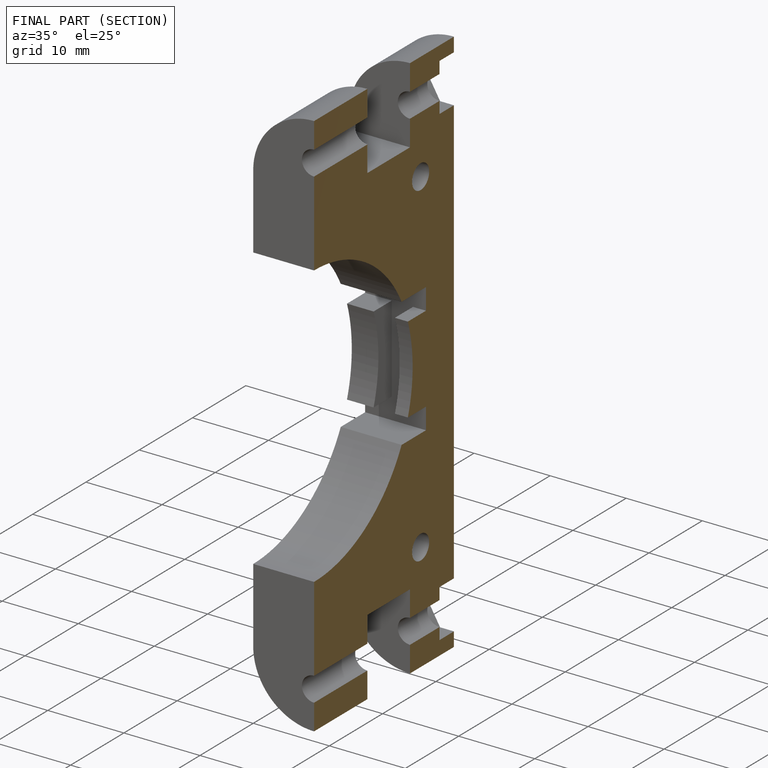
[diagram: finished part — half-section view (interior)]
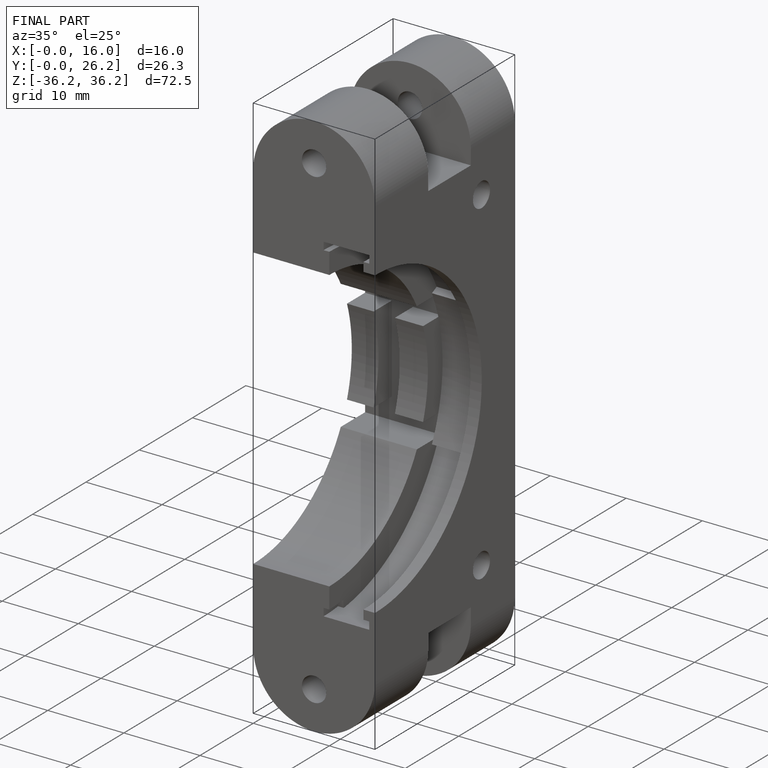
[diagram: finished part — iso view with bounding-box wireframe]
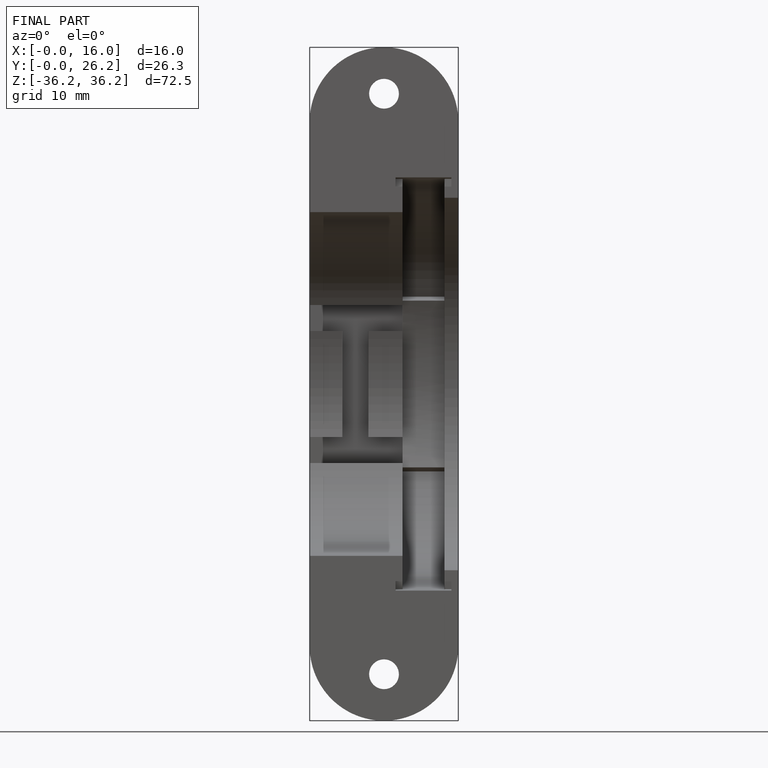
[diagram: finished part — front view with bounding-box wireframe]
